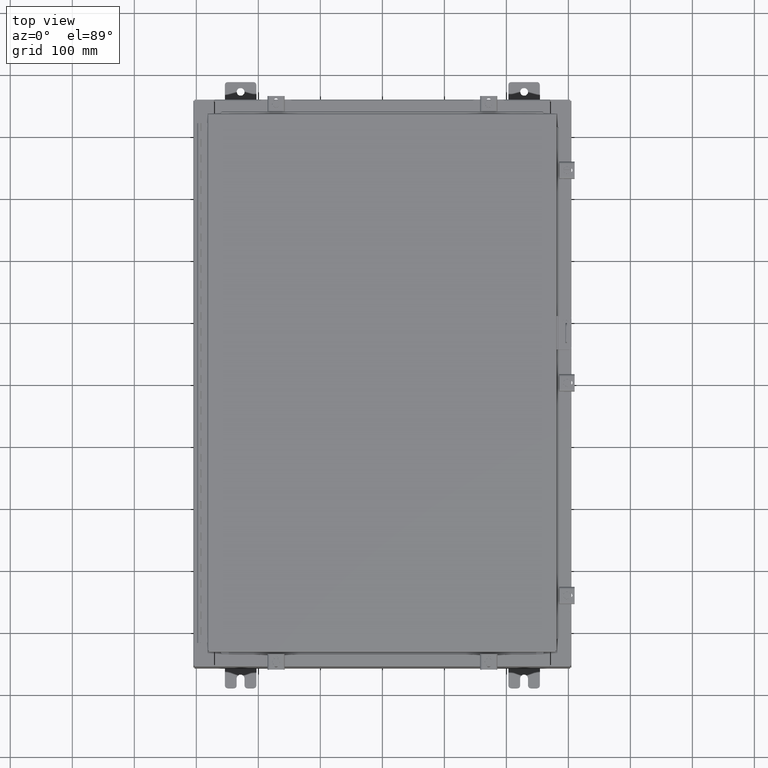
[diagram: clean part render]
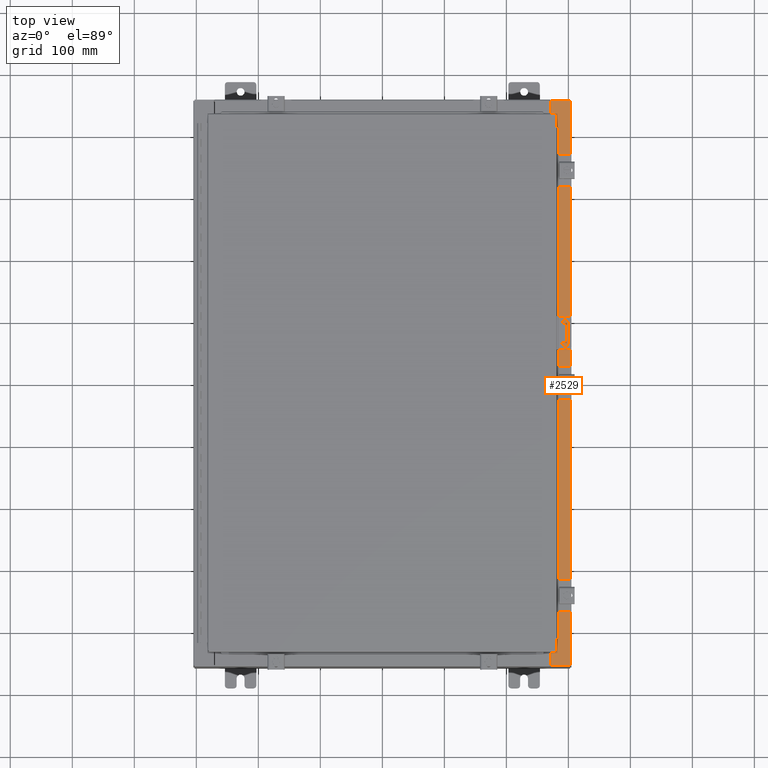
[diagram: same view with one face highlighted and labeled with its STEP entity id]
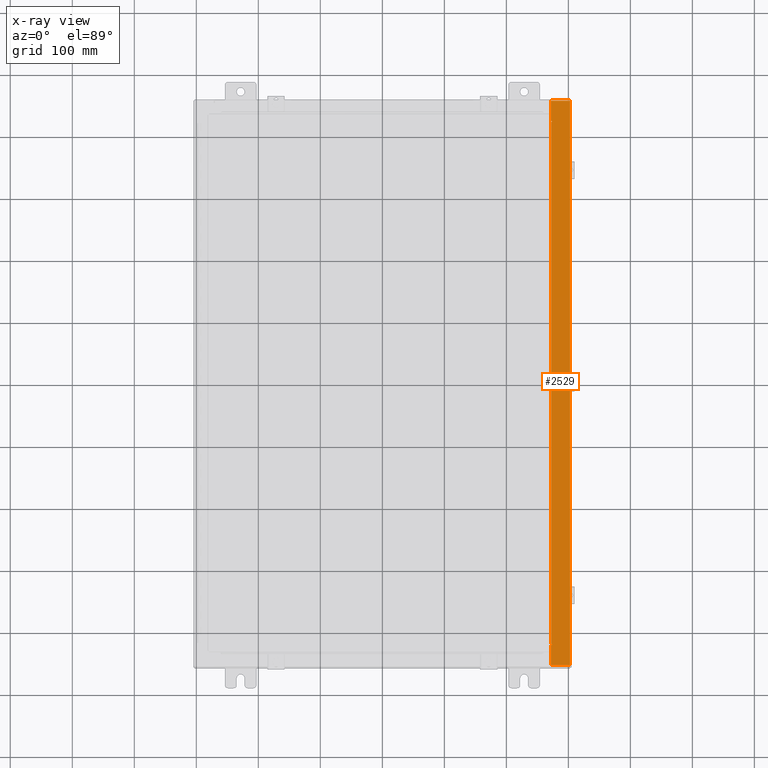
[diagram: x-ray of the same camera — body ghosted, the highlighted face saturated]
A machine part, top view. The second image highlights one B-rep face of the part: STEP entity #2529.
The next image is the same camera in x-ray: the body ghosted, the highlighted face saturated — about 0% of this face is hidden behind the body in this view.
In plain terms, the highlighted planar face has unit normal (-0, 0, -1).
Its self-contained STEP definition (entity closure, byte-faithful):
#251 = CIRCLE ( 'NONE', #40082, 0.01867499999999949400 ) ;
#369 = DIRECTION ( 'NONE',  ( 1.000000000000000000, 0.0000000000000000000, 0.0000000000000000000 ) ) ;
#888 = AXIS2_PLACEMENT_3D ( 'NONE', #18534, #41329, #21846 ) ;
#992 = ORIENTED_EDGE ( 'NONE', *, *, #40838, .F. ) ;
#1192 = VECTOR ( 'NONE', #20321, 39.37007874015748100 ) ;
#1907 = DIRECTION ( 'NONE',  ( 1.000000000000000000, 0.0000000000000000000, 0.0000000000000000000 ) ) ;
#2073 = AXIS2_PLACEMENT_3D ( 'NONE', #40809, #21331, #1907 ) ;
#2529 = ADVANCED_FACE ( 'NONE', ( #30610 ), #34817, .F. ) ;
#2885 = VERTEX_POINT ( 'NONE', #30176 ) ;
#3710 = CARTESIAN_POINT ( 'NONE',  ( 1.775970877600283600E-014, -17.92529999999998200, 7.925300000000073700 ) ) ;
#4391 = ORIENTED_EDGE ( 'NONE', *, *, #37928, .T. ) ;
#4885 = CARTESIAN_POINT ( 'NONE',  ( 10.69970000000003000, 16.63110000000000000, 7.925300000000007100 ) ) ;
#5047 = VERTEX_POINT ( 'NONE', #14080 ) ;
#5952 = CARTESIAN_POINT ( 'NONE',  ( 10.69970000000003000, -16.63110000000000400, 7.925300000000007100 ) ) ;
#6287 = VERTEX_POINT ( 'NONE', #39122 ) ;
#6762 = CARTESIAN_POINT ( 'NONE',  ( 11.91230000000002900, -17.92530000000000000, 7.925300000000000000 ) ) ;
#7601 = EDGE_LOOP ( 'NONE', ( #992, #4391, #19190, #41748, #23479, #28690, #37891, #27411, #39640, #33093, #22521, #18067 ) ) ;
#8088 = CARTESIAN_POINT ( 'NONE',  ( 10.75005000000003000, -16.61242500000000200, 7.925300000000010700 ) ) ;
#8090 = VECTOR ( 'NONE', #12803, 39.37007874015748100 ) ;
#8481 = VERTEX_POINT ( 'NONE', #33307 ) ;
#8955 = EDGE_CURVE ( 'NONE', #6287, #11848, #251, .T. ) ;
#8975 = DIRECTION ( 'NONE',  ( -1.000000000000000000, 0.0000000000000000000, 6.241167087353087800E-015 ) ) ;
#10665 = CARTESIAN_POINT ( 'NONE',  ( 10.71270000000003000, -16.59375000000000000, 7.925300000000010700 ) ) ;
#11329 = DIRECTION ( 'NONE',  ( 1.000000000000000000, 0.0000000000000000000, 0.0000000000000000000 ) ) ;
#11596 = VERTEX_POINT ( 'NONE', #4885 ) ;
#11844 = CARTESIAN_POINT ( 'NONE',  ( 10.75005000000003000, 16.59375000000000000, 7.925300000000007100 ) ) ;
#11848 = VERTEX_POINT ( 'NONE', #38545 ) ;
#12803 = DIRECTION ( 'NONE',  ( -2.156899250920150100E-031, -1.000000000000000000, 1.346156861557936900E-045 ) ) ;
#13684 = EDGE_CURVE ( 'NONE', #8481, #11596, #25370, .T. ) ;
#13932 = CARTESIAN_POINT ( 'NONE',  ( 10.69970000000003000, -17.92530000000000000, 7.925300000000007100 ) ) ;
#14080 = CARTESIAN_POINT ( 'NONE',  ( 10.71270000000003000, 16.59375000000000000, 7.925300000000010700 ) ) ;
#14807 = LINE ( 'NONE', #24988, #31118 ) ;
#14906 = LINE ( 'NONE', #16771, #37828 ) ;
#15793 = VECTOR ( 'NONE', #369, 39.37007874015748100 ) ;
#16188 = EDGE_CURVE ( 'NONE', #11848, #27078, #35427, .T. ) ;
#16771 = CARTESIAN_POINT ( 'NONE',  ( 10.69970000000003000, -16.63110000000000400, 7.925300000000008900 ) ) ;
#17517 = CARTESIAN_POINT ( 'NONE',  ( 11.91230000000002900, -17.92530000000000000, 7.925300000000000000 ) ) ;
#17532 = VECTOR ( 'NONE', #36977, 39.37007874015748100 ) ;
#17618 = CARTESIAN_POINT ( 'NONE',  ( 11.91230000000002900, 17.92530000000000000, 7.925300000000000000 ) ) ;
#18034 = VECTOR ( 'NONE', #8975, 39.37007874015748100 ) ;
#18067 = ORIENTED_EDGE ( 'NONE', *, *, #8955, .F. ) ;
#18371 = VERTEX_POINT ( 'NONE', #11844 ) ;
#18480 = VECTOR ( 'NONE', #36241, 39.37007874015748100 ) ;
#18534 = CARTESIAN_POINT ( 'NONE',  ( 4.972393517341145600E-014, 0.0000000000000000000, 7.925300000000073700 ) ) ;
#19190 = ORIENTED_EDGE ( 'NONE', *, *, #33390, .T. ) ;
#19308 = CARTESIAN_POINT ( 'NONE',  ( 10.69970000000003000, -2.307817491507028800E-030, 7.925300000000007100 ) ) ;
#19808 = CARTESIAN_POINT ( 'NONE',  ( 10.71270000000003000, 16.59375000000000000, 7.925300000000010700 ) ) ;
#20045 = DIRECTION ( 'NONE',  ( 1.000000000000000000, 4.340572780400098900E-014, 4.340572780400098900E-014 ) ) ;
#20321 = DIRECTION ( 'NONE',  ( -1.000000000000000000, 4.340572780400098900E-014, -4.340572780400098900E-014 ) ) ;
#20530 = LINE ( 'NONE', #3710, #18480 ) ;
#20737 = EDGE_CURVE ( 'NONE', #27078, #5047, #26222, .T. ) ;
#20811 = DIRECTION ( 'NONE',  ( -0.0000000000000000000, -1.000000000000000000, -0.0000000000000000000 ) ) ;
#20975 = EDGE_CURVE ( 'NONE', #27373, #8481, #36388, .T. ) ;
#21240 = VECTOR ( 'NONE', #20811, 39.37007874015748100 ) ;
#21331 = DIRECTION ( 'NONE',  ( 6.241167087353086200E-015, 0.0000000000000000000, 1.000000000000000000 ) ) ;
#21670 = VERTEX_POINT ( 'NONE', #5952 ) ;
#21846 = DIRECTION ( 'NONE',  ( -1.000000000000000000, 0.0000000000000000000, 6.241167087353086200E-015 ) ) ;
#21893 = CARTESIAN_POINT ( 'NONE',  ( 4.972393517341145600E-014, 17.92529999999999600, 7.925300000000073700 ) ) ;
#22118 = CIRCLE ( 'NONE', #2073, 0.01867499999999949400 ) ;
#22521 = ORIENTED_EDGE ( 'NONE', *, *, #16188, .F. ) ;
#23479 = ORIENTED_EDGE ( 'NONE', *, *, #20975, .T. ) ;
#23668 = VECTOR ( 'NONE', #41525, 39.37007874015748100 ) ;
#24988 = CARTESIAN_POINT ( 'NONE',  ( 10.69970000000003000, -2.307817491507028800E-030, 7.925300000000007100 ) ) ;
#25370 = LINE ( 'NONE', #19308, #8090 ) ;
#25485 = LINE ( 'NONE', #19808, #15793 ) ;
#26222 = LINE ( 'NONE', #10665, #17532 ) ;
#27078 = VERTEX_POINT ( 'NONE', #29052 ) ;
#27124 = LINE ( 'NONE', #39828, #1192 ) ;
#27373 = VERTEX_POINT ( 'NONE', #17618 ) ;
#27411 = ORIENTED_EDGE ( 'NONE', *, *, #35818, .F. ) ;
#28259 = DIRECTION ( 'NONE',  ( -2.156899250920150100E-031, -1.000000000000000000, 1.346156861557936900E-045 ) ) ;
#28532 = EDGE_CURVE ( 'NONE', #5047, #18371, #25485, .T. ) ;
#28690 = ORIENTED_EDGE ( 'NONE', *, *, #13684, .T. ) ;
#29052 = CARTESIAN_POINT ( 'NONE',  ( 10.71270000000003000, -16.59375000000000000, 7.925300000000010700 ) ) ;
#30176 = CARTESIAN_POINT ( 'NONE',  ( 10.75005000000003000, 16.63110000000000000, 7.925300000000007100 ) ) ;
#30439 = EDGE_CURVE ( 'NONE', #27373, #42115, #39573, .T. ) ;
#30610 = FACE_OUTER_BOUND ( 'NONE', #7601, .T. ) ;
#30804 = DIRECTION ( 'NONE',  ( 6.241167087353086200E-015, 0.0000000000000000000, 1.000000000000000000 ) ) ;
#31118 = VECTOR ( 'NONE', #28259, 39.37007874015748100 ) ;
#31721 = CARTESIAN_POINT ( 'NONE',  ( 10.75005000000003000, -16.59375000000000000, 7.925300000000010700 ) ) ;
#33093 = ORIENTED_EDGE ( 'NONE', *, *, #20737, .F. ) ;
#33307 = CARTESIAN_POINT ( 'NONE',  ( 10.69970000000003000, 17.92530000000000000, 7.925300000000007100 ) ) ;
#33390 = EDGE_CURVE ( 'NONE', #37183, #42115, #20530, .T. ) ;
#34817 = PLANE ( 'NONE',  #888 ) ;
#35427 = LINE ( 'NONE', #31721, #23668 ) ;
#35818 = EDGE_CURVE ( 'NONE', #18371, #2885, #22118, .T. ) ;
#36241 = DIRECTION ( 'NONE',  ( 1.000000000000000000, -1.783190596386596200E-015, -6.241167087353087800E-015 ) ) ;
#36388 = LINE ( 'NONE', #21893, #18034 ) ;
#36977 = DIRECTION ( 'NONE',  ( -0.0000000000000000000, 1.000000000000000000, -0.0000000000000000000 ) ) ;
#37183 = VERTEX_POINT ( 'NONE', #13932 ) ;
#37828 = VECTOR ( 'NONE', #20045, 39.37007874015748100 ) ;
#37891 = ORIENTED_EDGE ( 'NONE', *, *, #40918, .F. ) ;
#37928 = EDGE_CURVE ( 'NONE', #21670, #37183, #14807, .T. ) ;
#38545 = CARTESIAN_POINT ( 'NONE',  ( 10.75005000000003000, -16.59375000000000000, 7.925300000000007100 ) ) ;
#39122 = CARTESIAN_POINT ( 'NONE',  ( 10.75005000000003000, -16.63110000000000000, 7.925300000000007100 ) ) ;
#39573 = LINE ( 'NONE', #17517, #21240 ) ;
#39640 = ORIENTED_EDGE ( 'NONE', *, *, #28532, .F. ) ;
#39828 = CARTESIAN_POINT ( 'NONE',  ( 10.75005000000003000, 16.63110000000000000, 7.925300000000010700 ) ) ;
#40082 = AXIS2_PLACEMENT_3D ( 'NONE', #8088, #30804, #11329 ) ;
#40809 = CARTESIAN_POINT ( 'NONE',  ( 10.75005000000003000, 16.61242500000000200, 7.925300000000010700 ) ) ;
#40838 = EDGE_CURVE ( 'NONE', #21670, #6287, #14906, .T. ) ;
#40918 = EDGE_CURVE ( 'NONE', #2885, #11596, #27124, .T. ) ;
#41329 = DIRECTION ( 'NONE',  ( -6.241167087353086200E-015, 0.0000000000000000000, -1.000000000000000000 ) ) ;
#41525 = DIRECTION ( 'NONE',  ( -1.000000000000000000, 0.0000000000000000000, 0.0000000000000000000 ) ) ;
#41748 = ORIENTED_EDGE ( 'NONE', *, *, #30439, .F. ) ;
#42115 = VERTEX_POINT ( 'NONE', #6762 ) ;